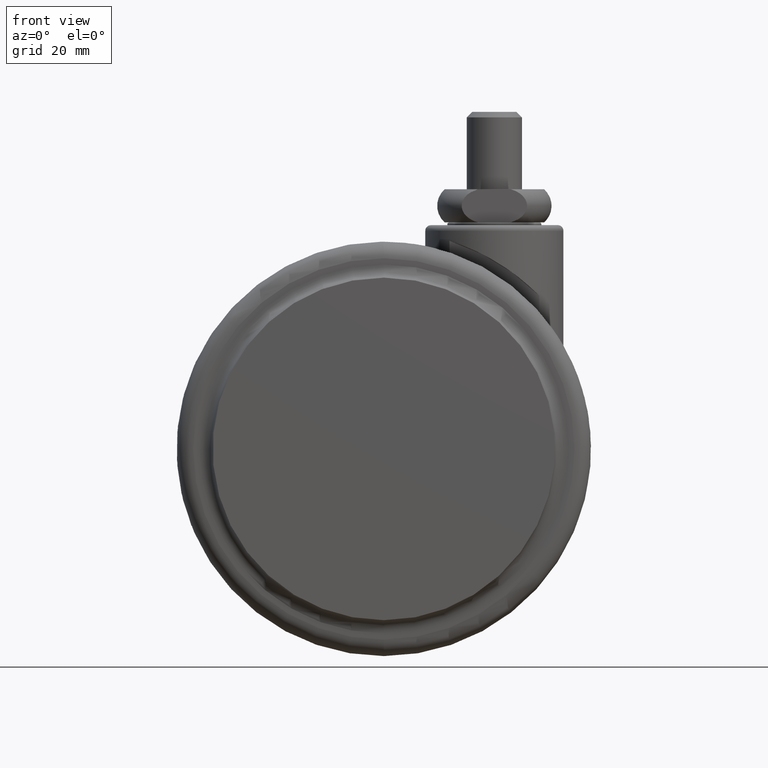
[diagram: clean part render]
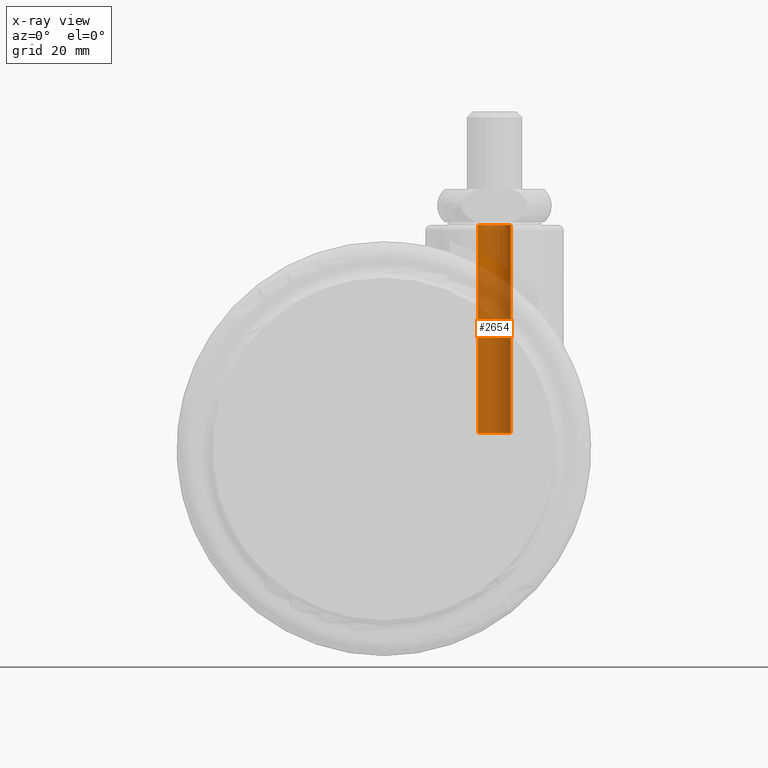
[diagram: x-ray — body ghosted, one internal face saturated and labeled with its STEP entity id]
A machine part, front view, then the same camera in x-ray: the body is ghosted and one INTERNAL B-rep face — a face not visible from any outside direction — is saturated and labeled: STEP entity #2654.
In plain terms, the highlighted cylindrical surface (edge-blend (fillet) strip) has radius 3 mm, axis along (0, 0, 1).
Its self-contained STEP definition (entity closure, byte-faithful):
#62 = EDGE_CURVE ( 'NONE', #563, #669, #1798, .T. ) ;
#132 = CARTESIAN_POINT ( 'NONE',  ( -3.000000000000000000, 2.878910347014820000E-014, -37.61339081420354800 ) ) ;
#192 = CARTESIAN_POINT ( 'NONE',  ( 3.000000000000000000, 2.842170943040399500E-014, 0.0000000000000000000 ) ) ;
#502 = DIRECTION ( 'NONE',  ( 0.0000000000000000000, 0.0000000000000000000, 1.000000000000000000 ) ) ;
#563 = VERTEX_POINT ( 'NONE', #132 ) ;
#659 = CYLINDRICAL_SURFACE ( 'NONE', #1539, 3.000000000000000000 ) ;
#669 = VERTEX_POINT ( 'NONE', #3594 ) ;
#878 = CARTESIAN_POINT ( 'NONE',  ( 3.000000000000000000, 2.842170943040399500E-014, -37.61339081420354800 ) ) ;
#935 = EDGE_CURVE ( 'NONE', #2042, #563, #3475, .T. ) ;
#974 = VECTOR ( 'NONE', #502, 1000.000000000000000 ) ;
#1028 = ORIENTED_EDGE ( 'NONE', *, *, #62, .F. ) ;
#1111 = DIRECTION ( 'NONE',  ( -0.0000000000000000000, -0.0000000000000000000, 1.000000000000000000 ) ) ;
#1539 = AXIS2_PLACEMENT_3D ( 'NONE', #3159, #1634, #3461 ) ;
#1634 = DIRECTION ( 'NONE',  ( 0.0000000000000000000, 0.0000000000000000000, 1.000000000000000000 ) ) ;
#1704 = CIRCLE ( 'NONE', #3162, 3.000000000000000000 ) ;
#1798 = LINE ( 'NONE', #1887, #974 ) ;
#1887 = CARTESIAN_POINT ( 'NONE',  ( -3.000000000000000000, 2.878910347014820000E-014, -1000.000000000000000 ) ) ;
#2042 = VERTEX_POINT ( 'NONE', #878 ) ;
#2047 = LINE ( 'NONE', #2048, #3557 ) ;
#2048 = CARTESIAN_POINT ( 'NONE',  ( 3.000000000000000000, 2.842170943040399500E-014, -1000.000000000000000 ) ) ;
#2458 = EDGE_CURVE ( 'NONE', #2042, #2786, #2047, .T. ) ;
#2647 = DIRECTION ( 'NONE',  ( 0.0000000000000000000, 0.0000000000000000000, 1.000000000000000000 ) ) ;
#2654 = ADVANCED_FACE ( 'NONE', ( #3898 ), #659, .F. ) ;
#2786 = VERTEX_POINT ( 'NONE', #192 ) ;
#2794 = EDGE_CURVE ( 'NONE', #2786, #669, #1704, .T. ) ;
#2850 = CARTESIAN_POINT ( 'NONE',  ( 0.0000000000000000000, 2.842170943040399500E-014, -37.61339081420354800 ) ) ;
#2887 = DIRECTION ( 'NONE',  ( -0.0000000000000000000, -0.0000000000000000000, 1.000000000000000000 ) ) ;
#2893 = ORIENTED_EDGE ( 'NONE', *, *, #2458, .T. ) ;
#2930 = CARTESIAN_POINT ( 'NONE',  ( 0.0000000000000000000, 2.842170943040399500E-014, 0.0000000000000000000 ) ) ;
#2955 = AXIS2_PLACEMENT_3D ( 'NONE', #2850, #2887, #2956 ) ;
#2956 = DIRECTION ( 'NONE',  ( -1.000000000000000000, 0.0000000000000000000, 0.0000000000000000000 ) ) ;
#2998 = ORIENTED_EDGE ( 'NONE', *, *, #2794, .T. ) ;
#3159 = CARTESIAN_POINT ( 'NONE',  ( 0.0000000000000000000, 2.842170943040399500E-014, -1000.000000000000000 ) ) ;
#3162 = AXIS2_PLACEMENT_3D ( 'NONE', #2930, #1111, #3240 ) ;
#3240 = DIRECTION ( 'NONE',  ( -1.000000000000000000, 0.0000000000000000000, 0.0000000000000000000 ) ) ;
#3274 = ORIENTED_EDGE ( 'NONE', *, *, #935, .F. ) ;
#3355 = EDGE_LOOP ( 'NONE', ( #1028, #3274, #2893, #2998 ) ) ;
#3461 = DIRECTION ( 'NONE',  ( 1.000000000000000000, 0.0000000000000000000, 0.0000000000000000000 ) ) ;
#3475 = CIRCLE ( 'NONE', #2955, 3.000000000000000000 ) ;
#3557 = VECTOR ( 'NONE', #2647, 1000.000000000000000 ) ;
#3594 = CARTESIAN_POINT ( 'NONE',  ( -3.000000000000000000, 2.878910347014820000E-014, 0.0000000000000000000 ) ) ;
#3898 = FACE_OUTER_BOUND ( 'NONE', #3355, .T. ) ;